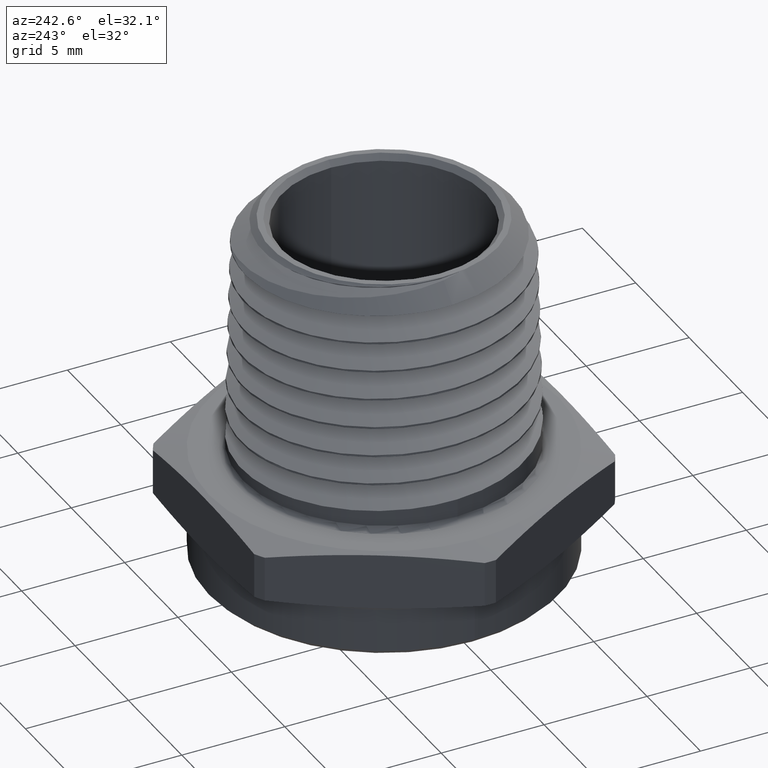
[diagram: clean part render]
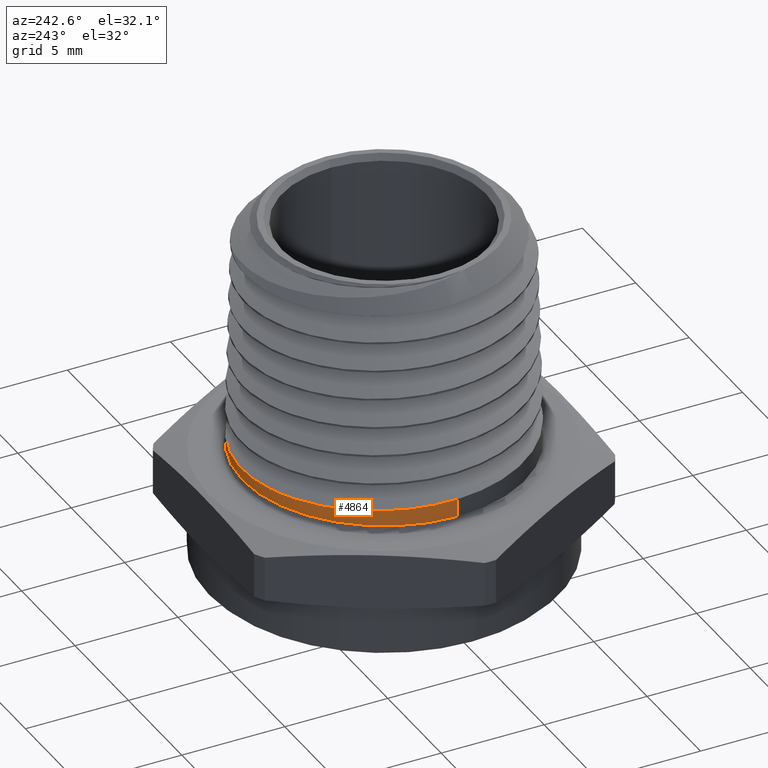
[diagram: same view with one face highlighted and labeled with its STEP entity id]
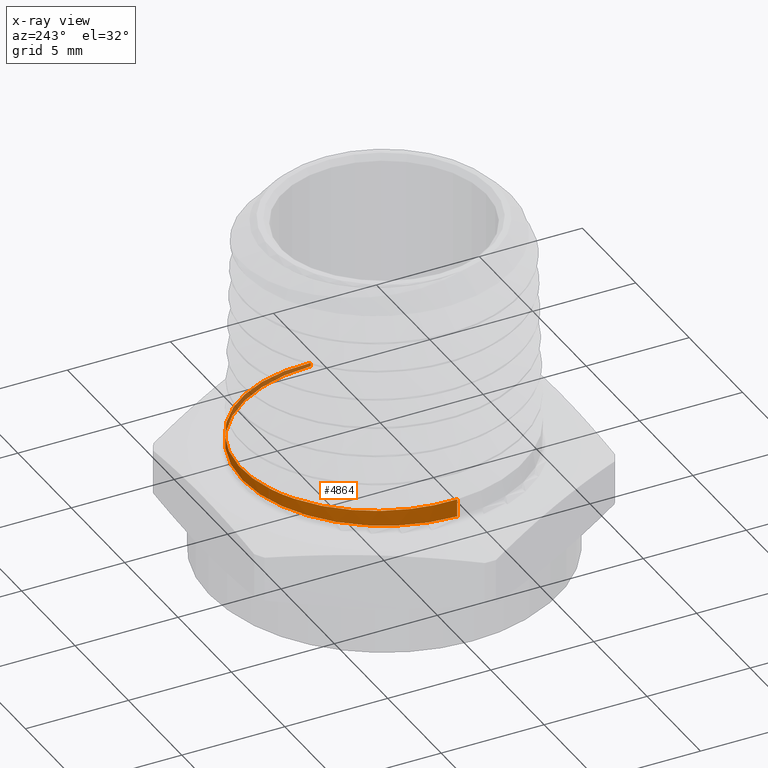
[diagram: x-ray of the same camera — body ghosted, the highlighted face saturated]
A machine part, auxiliary view. The second image highlights one B-rep face of the part: STEP entity #4864.
The next image is the same camera in x-ray: the body ghosted, the highlighted face saturated — about 11% of this face is hidden behind the body in this view.
In plain terms, the highlighted cylindrical surface (partial cylindrical patch) has radius 6.858 mm, axis along (-0, -0, -1).
Its self-contained STEP definition (entity closure, byte-faithful):
#683 = AXIS2_PLACEMENT_3D ( 'NONE', #4798, #4797, #4796 ) ;
#739 = AXIS2_PLACEMENT_3D ( 'NONE', #3414, #3415, #3413 ) ;
#1602 = B_SPLINE_CURVE_WITH_KNOTS ( 'NONE', 3,
 ( #4849, #4833, #4824, #4848, #4847, #4846, #4845, #4844, #4843, #4841, #4840, #4839, #4838, #4836, #4835, #4834, #4832, #4831, #4830, #4829, #4828, #4827, #4826, #4825, #4822, #4821, #4820, #4819, #4818, #4817, #4816, #4815, #4814, #4813, #4812, #4811, #4810, #4809, #4808, #4807, #4806, #4805, #4804 ),
 .UNSPECIFIED., .F., .F.,
 ( 4, 2, 2, 2, 2, 2, 2, 2, 1, 2, 2, 2, 2, 2, 2, 2, 2, 2, 2, 2, 2, 4 ),
 ( 3.414742822735800700E-018, 0.001340394002137012100, 0.002010591003205517000, 0.002680788004274021600, 0.004021182006411029600, 0.005361576008548037100, 0.006701970010685045500, 0.007372167011753549300, 0.008042364012822053900, 0.008712561013890557700, 0.009382758014959063200, 0.01072315201709607100, 0.01206354601923307800, 0.01340394002137008800, 0.01474433402350709500, 0.01541453102457559900, 0.01608472802564410100, 0.01742512202778110800, 0.01809531902884961200, 0.01876551602991811300, 0.02010591003205512000, 0.02144630403419212400 ),
 .UNSPECIFIED. ) ;
#1605 = ORIENTED_EDGE ( 'NONE', *, *, #1663, .F. ) ;
#1663 = EDGE_CURVE ( 'NONE', #1866, #1878, #1602, .T. ) ;
#1664 = EDGE_CURVE ( 'NONE', #1866, #1848, #2571, .T. ) ;
#1665 = EDGE_CURVE ( 'NONE', #1848, #1850, #2570, .T. ) ;
#1666 = EDGE_CURVE ( 'NONE', #1878, #1850, #2573, .T. ) ;
#1848 = VERTEX_POINT ( 'NONE', #4542 ) ;
#1850 = VERTEX_POINT ( 'NONE', #4544 ) ;
#1866 = VERTEX_POINT ( 'NONE', #4560 ) ;
#1878 = VERTEX_POINT ( 'NONE', #4572 ) ;
#1924 = ORIENTED_EDGE ( 'NONE', *, *, #1664, .T. ) ;
#2487 = ORIENTED_EDGE ( 'NONE', *, *, #1665, .T. ) ;
#2488 = ORIENTED_EDGE ( 'NONE', *, *, #1666, .F. ) ;
#2567 = VECTOR ( 'NONE', #4801, 39.37007874015748100 ) ;
#2570 = CIRCLE ( 'NONE', #683, 0.2700000000000000200 ) ;
#2571 = LINE ( 'NONE', #4803, #2567 ) ;
#2573 = LINE ( 'NONE', #4802, #2575 ) ;
#2575 = VECTOR ( 'NONE', #4823, 39.37007874015748100 ) ;
#2727 = FACE_OUTER_BOUND ( 'NONE', #4601, .T. ) ;
#2730 = CYLINDRICAL_SURFACE ( 'NONE', #739, 0.2700000000000000200 ) ;
#3413 = DIRECTION ( 'NONE',  ( -1.000000000000000000, 0.0000000000000000000, 0.0000000000000000000 ) ) ;
#3414 = CARTESIAN_POINT ( 'NONE',  ( 0.0000000000000000000, 0.0000000000000000000, 0.5699999999999999500 ) ) ;
#3415 = DIRECTION ( 'NONE',  ( -0.0000000000000000000, -0.0000000000000000000, -1.000000000000000000 ) ) ;
#4542 = CARTESIAN_POINT ( 'NONE',  ( 0.2700000000000000200, 3.306546357697853700E-017, 0.1200000000000000200 ) ) ;
#4544 = CARTESIAN_POINT ( 'NONE',  ( -0.2700000000000000200, 0.0000000000000000000, 0.1200000000000000200 ) ) ;
#4560 = CARTESIAN_POINT ( 'NONE',  ( 0.2699999999999999600, 3.967855629237423000E-016, 0.1268515041418107600 ) ) ;
#4572 = CARTESIAN_POINT ( 'NONE',  ( -0.2699999999999999600, -5.001928457193992400E-013, 0.1542199171673591700 ) ) ;
#4601 = EDGE_LOOP ( 'NONE', ( #1605, #1924, #2487, #2488 ) ) ;
#4796 = DIRECTION ( 'NONE',  ( 1.000000000000000000, 0.0000000000000000000, 0.0000000000000000000 ) ) ;
#4797 = DIRECTION ( 'NONE',  ( -0.0000000000000000000, 0.0000000000000000000, 1.000000000000000000 ) ) ;
#4798 = CARTESIAN_POINT ( 'NONE',  ( 0.0000000000000000000, 0.0000000000000000000, 0.1200000000000000200 ) ) ;
#4801 = DIRECTION ( 'NONE',  ( -0.0000000000000000000, -0.0000000000000000000, -1.000000000000000000 ) ) ;
#4802 = CARTESIAN_POINT ( 'NONE',  ( -0.2700000000000000200, 0.0000000000000000000, 0.5699999999999999500 ) ) ;
#4803 = CARTESIAN_POINT ( 'NONE',  ( 0.2700000000000000200, 3.306546357697853700E-017, 0.5699999999999999500 ) ) ;
#4804 = CARTESIAN_POINT ( 'NONE',  ( -0.2699999999999999600, -5.001928457193992400E-013, 0.1542199171673591700 ) ) ;
#4805 = CARTESIAN_POINT ( 'NONE',  ( -0.2700000000000325500, 0.01758202900149022700, 0.1536526273707125300 ) ) ;
#4806 = CARTESIAN_POINT ( 'NONE',  ( -0.2682798121680995400, 0.03524363475172291600, 0.1530731614110630600 ) ) ;
#4807 = CARTESIAN_POINT ( 'NONE',  ( -0.2613407848404258900, 0.07012250413707329900, 0.1519257938527396000 ) ) ;
#4808 = CARTESIAN_POINT ( 'NONE',  ( -0.2562164072194421100, 0.08696495277631752200, 0.1513700617943435100 ) ) ;
#4809 = CARTESIAN_POINT ( 'NONE',  ( -0.2461231997872565200, 0.1113589157249599100, 0.1505183446227805500 ) ) ;
#4810 = CARTESIAN_POINT ( 'NONE',  ( -0.2423548061569774400, 0.1193442222245422600, 0.1502308026347015700 ) ) ;
#4811 = CARTESIAN_POINT ( 'NONE',  ( -0.2339870483908756100, 0.1350146533939669800, 0.1496527617789157000 ) ) ;
#4812 = CARTESIAN_POINT ( 'NONE',  ( -0.2293957849049994600, 0.1426728789364685400, 0.1493631881303135200 ) ) ;
#4813 = CARTESIAN_POINT ( 'NONE',  ( -0.2146769399322360800, 0.1646988692315013200, 0.1485084882366272700 ) ) ;
#4814 = CARTESIAN_POINT ( 'NONE',  ( -0.2035279334639228100, 0.1782936716387628100, 0.1479534526292354000 ) ) ;
#4815 = CARTESIAN_POINT ( 'NONE',  ( -0.1847973313768502000, 0.1970482417521814400, 0.1470983492866631500 ) ) ;
#4816 = CARTESIAN_POINT ( 'NONE',  ( -0.1781774791141261200, 0.2030555439507266100, 0.1468072408967734400 ) ) ;
#4817 = CARTESIAN_POINT ( 'NONE',  ( -0.1644580410881337800, 0.2143182696693027600, 0.1462296713347237300 ) ) ;
#4818 = CARTESIAN_POINT ( 'NONE',  ( -0.1573682204637789900, 0.2195737763104859100, 0.1459434661137436800 ) ) ;
#4819 = CARTESIAN_POINT ( 'NONE',  ( -0.1354263714337964900, 0.2342419649443941400, 0.1450919045714654200 ) ) ;
#4820 = CARTESIAN_POINT ( 'NONE',  ( -0.1199083582877399400, 0.2425669265509706200, 0.1445359959676083000 ) ) ;
#4821 = CARTESIAN_POINT ( 'NONE',  ( -0.08703200813992285900, 0.2562072555623227700, 0.1433877028999715500 ) ) ;
#4822 = CARTESIAN_POINT ( 'NONE',  ( -0.07005803201944460500, 0.2613487499283221900, 0.1428085096059334400 ) ) ;
#4823 = DIRECTION ( 'NONE',  ( -0.0000000000000000000, -0.0000000000000000000, -1.000000000000000000 ) ) ;
#4824 = CARTESIAN_POINT ( 'NONE',  ( 0.2682502563384419100, 0.03537138067886663000, 0.1279835175848952600 ) ) ;
#4825 = CARTESIAN_POINT ( 'NONE',  ( -0.03545093180093401900, 0.2682434125453591600, 0.1416699769316199000 ) ) ;
#4826 = CARTESIAN_POINT ( 'NONE',  ( -0.01758404679158295400, 0.2700060699529434600, 0.1411031102310830700 ) ) ;
#4827 = CARTESIAN_POINT ( 'NONE',  ( 0.01776996152224644800, 0.2699938980430859300, 0.1399623122440608900 ) ) ;
#4828 = CARTESIAN_POINT ( 'NONE',  ( 0.03532560583271919500, 0.2682686302207263900, 0.1393862719705688800 ) ) ;
#4829 = CARTESIAN_POINT ( 'NONE',  ( 0.06147438563975617100, 0.2630587177935809800, 0.1385260670990290100 ) ) ;
#4830 = CARTESIAN_POINT ( 'NONE',  ( 0.07012979715420855600, 0.2608826864615903500, 0.1382403279984579000 ) ) ;
#4831 = CARTESIAN_POINT ( 'NONE',  ( 0.08702490804668959500, 0.2557432891079883800, 0.1376753628090631200 ) ) ;
#4832 = CARTESIAN_POINT ( 'NONE',  ( 0.1035906053195423500, 0.2498008068791997300, 0.1371140563541170300 ) ) ;
#4833 = CARTESIAN_POINT ( 'NONE',  ( 0.2700000000000000200, 0.01783445152731886000, 0.1274269384289741800 ) ) ;
#4834 = CARTESIAN_POINT ( 'NONE',  ( 0.1195055909079631600, 0.2422735848036770300, 0.1365407154947395300 ) ) ;
#4835 = CARTESIAN_POINT ( 'NONE',  ( 0.1350903001458070900, 0.2339416315203467500, 0.1359656919204895700 ) ) ;
#4836 = CARTESIAN_POINT ( 'NONE',  ( 0.1427583960047453800, 0.2293442608419148700, 0.1356757466267013700 ) ) ;
#4838 = CARTESIAN_POINT ( 'NONE',  ( 0.1648854460068792400, 0.2145408775478474500, 0.1348168728827416100 ) ) ;
#4839 = CARTESIAN_POINT ( 'NONE',  ( 0.1784744722225370700, 0.2033642659300488600, 0.1342614743186101000 ) ) ;
#4840 = CARTESIAN_POINT ( 'NONE',  ( 0.2033796956324514500, 0.1784568891828842200, 0.1331249872874615000 ) ) ;
#4841 = CARTESIAN_POINT ( 'NONE',  ( 0.2147805341364444300, 0.1645616057946034100, 0.1325381074111930100 ) ) ;
#4843 = CARTESIAN_POINT ( 'NONE',  ( 0.2343669510351274700, 0.1352158726190569300, 0.1313998592707439100 ) ) ;
#4844 = CARTESIAN_POINT ( 'NONE',  ( 0.2426577475059554000, 0.1197093562568807100, 0.1308447916443683500 ) ) ;
#4845 = CARTESIAN_POINT ( 'NONE',  ( 0.2528188307303880800, 0.09518884875942464100, 0.1299884193214418700 ) ) ;
#4846 = CARTESIAN_POINT ( 'NONE',  ( 0.2558344603213222300, 0.08675960811354765900, 0.1296969540593431200 ) ) ;
#4847 = CARTESIAN_POINT ( 'NONE',  ( 0.2609719895884684000, 0.06980058264910780900, 0.1291205109961278400 ) ) ;
#4848 = CARTESIAN_POINT ( 'NONE',  ( 0.2631085261991488700, 0.06124734353834508000, 0.1288346710481226600 ) ) ;
#4849 = CARTESIAN_POINT ( 'NONE',  ( 0.2699999999999999600, 3.967855629237423000E-016, 0.1268515041418107600 ) ) ;
#4864 = ADVANCED_FACE ( 'NONE', ( #2727 ), #2730, .T. ) ;